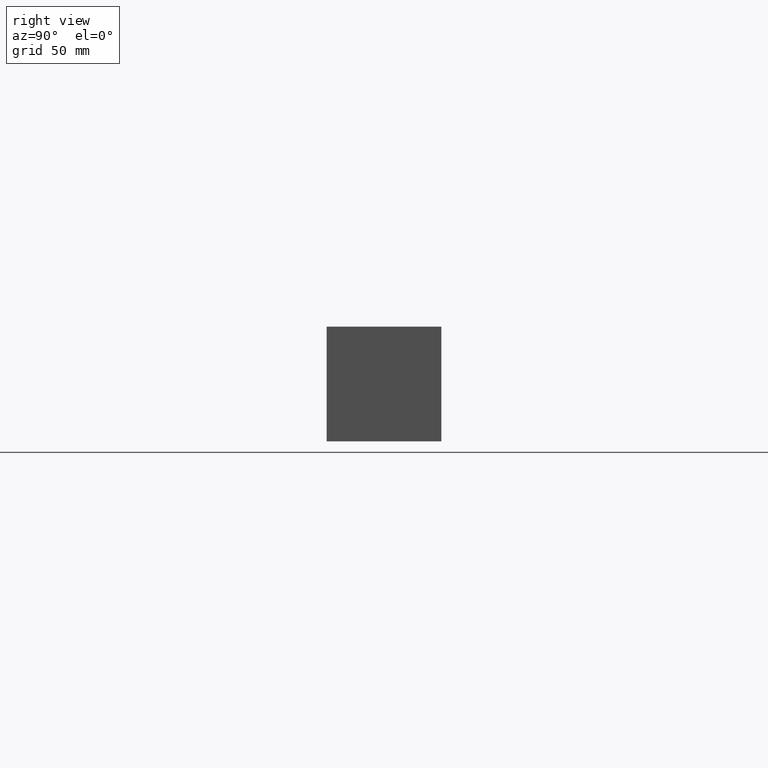
[diagram: clean part render]
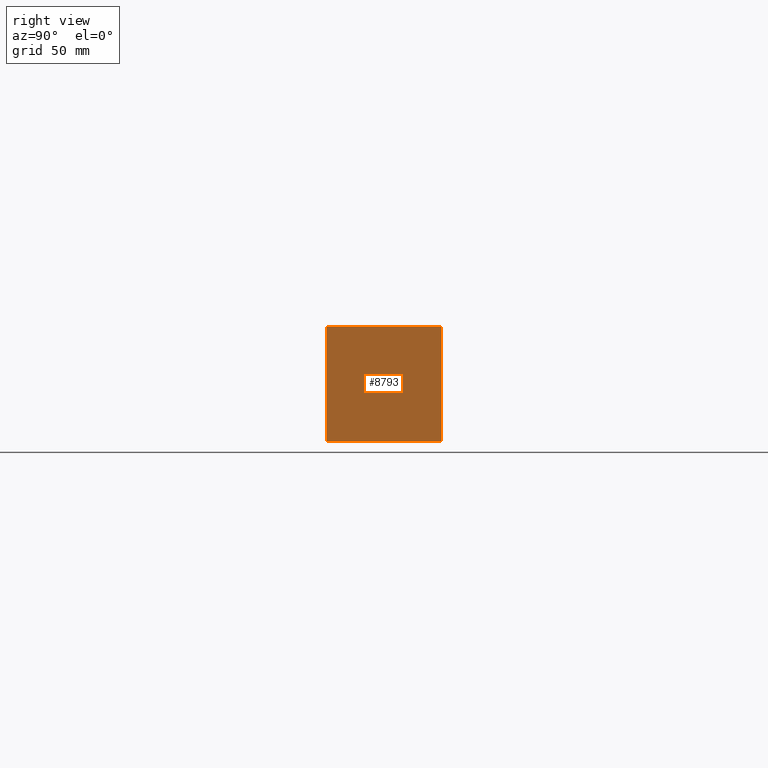
[diagram: same view with one face highlighted and labeled with its STEP entity id]
A machine part, right view. The second image highlights one B-rep face of the part: STEP entity #8793.
In plain terms, the highlighted planar face has unit normal (1, 0, 0).
Its self-contained STEP definition (entity closure, byte-faithful):
#685=PLANE('',#9405);
#1147=FACE_OUTER_BOUND('',#1674,.T.);
#1674=EDGE_LOOP('',(#7891,#7892,#7893,#7894));
#1958=LINE('',#13564,#2733);
#2461=LINE('',#15221,#3236);
#2462=LINE('',#15224,#3237);
#2463=LINE('',#15225,#3238);
#2733=VECTOR('',#9815,10.);
#3236=VECTOR('',#11370,10.);
#3237=VECTOR('',#11373,10.);
#3238=VECTOR('',#11374,10.);
#3755=VERTEX_POINT('',#13561);
#3756=VERTEX_POINT('',#13563);
#4256=VERTEX_POINT('',#15219);
#4257=VERTEX_POINT('',#15223);
#4718=EDGE_CURVE('',#3755,#3756,#1958,.T.);
#5477=EDGE_CURVE('',#4256,#3756,#2461,.T.);
#5478=EDGE_CURVE('',#4257,#4256,#2462,.T.);
#5479=EDGE_CURVE('',#4257,#3755,#2463,.T.);
#7891=ORIENTED_EDGE('',*,*,#5478,.T.);
#7892=ORIENTED_EDGE('',*,*,#5477,.T.);
#7893=ORIENTED_EDGE('',*,*,#4718,.F.);
#7894=ORIENTED_EDGE('',*,*,#5479,.F.);
#8793=ADVANCED_FACE('',(#1147),#685,.T.);
#9405=AXIS2_PLACEMENT_3D('',#15222,#11371,#11372);
#9815=DIRECTION('',(0.,1.,0.));
#11370=DIRECTION('',(0.,0.,1.));
#11371=DIRECTION('center_axis',(1.,0.,0.));
#11372=DIRECTION('ref_axis',(0.,1.,0.));
#11373=DIRECTION('',(0.,1.,0.));
#11374=DIRECTION('',(0.,0.,1.));
#13561=CARTESIAN_POINT('',(276.225,0.,44.45));
#13563=CARTESIAN_POINT('',(276.225,44.45,44.45));
#13564=CARTESIAN_POINT('',(276.225,0.,44.45));
#15219=CARTESIAN_POINT('',(276.225,44.45,0.));
#15221=CARTESIAN_POINT('',(276.225,44.45,0.));
#15222=CARTESIAN_POINT('Origin',(276.225,0.,0.));
#15223=CARTESIAN_POINT('',(276.225,0.,0.));
#15224=CARTESIAN_POINT('',(276.225,0.,0.));
#15225=CARTESIAN_POINT('',(276.225,0.,0.));